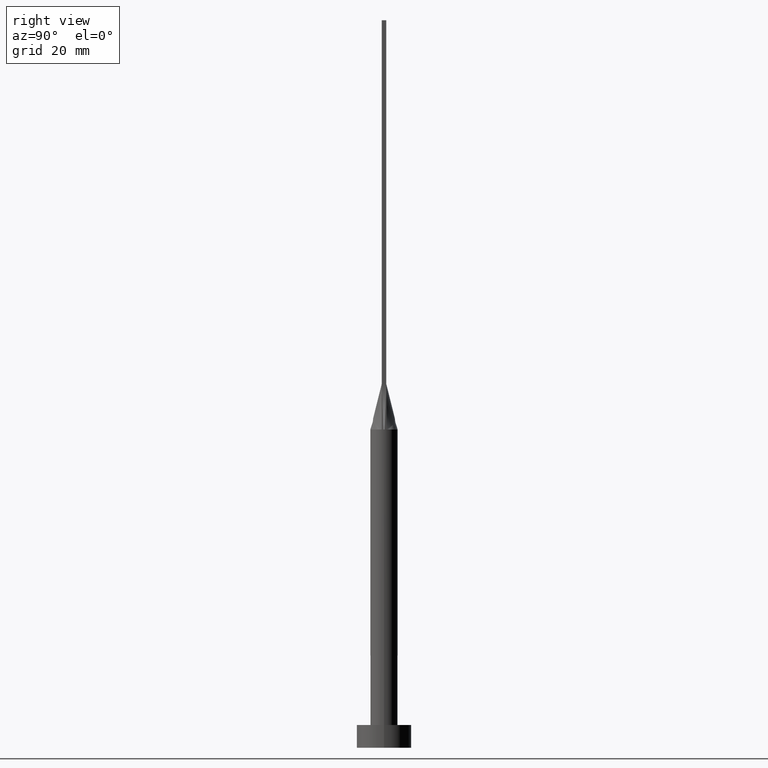
[diagram: clean part render]
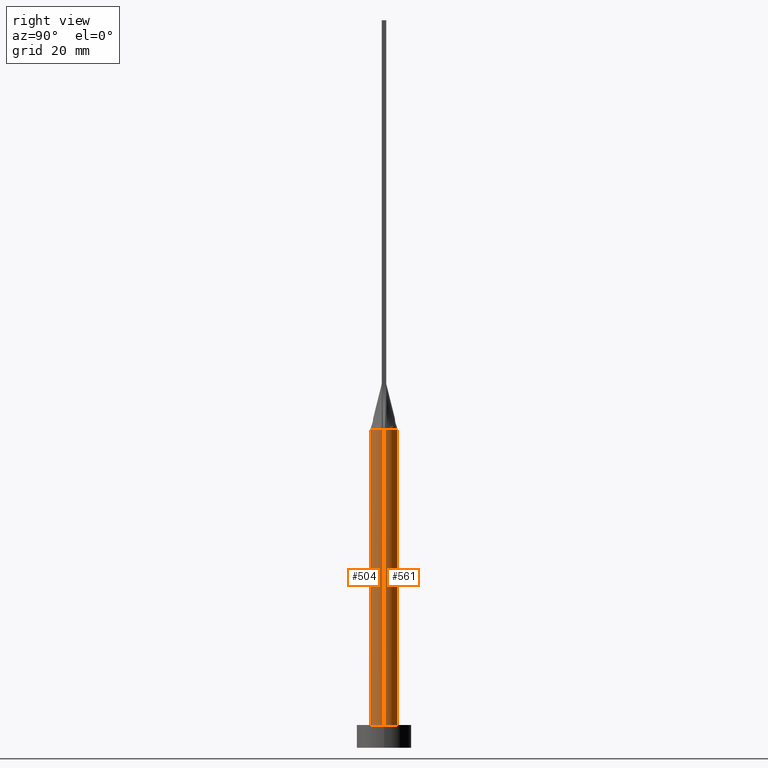
[diagram: same view with one multi-face feature highlighted, each face labeled with its STEP entity id]
A machine part, right view. The highlighted faces form ONE feature: a constant-radius fillet chain: 2 tangent blend faces with common blend radius 3 mm. The faces share edges in the B-rep.
Their STEP definitions:
[1] entity #504 (Cylinder):
#4 = VERTEX_POINT ( 'NONE', #468 ) ;
#5 = AXIS2_PLACEMENT_3D ( 'NONE', #438, #88, #351 ) ;
#6 = CIRCLE ( 'NONE', #252, 3.000000000000000444 ) ;
#9 = ORIENTED_EDGE ( 'NONE', *, *, #550, .F. ) ;
#11 = DIRECTION ( 'NONE',  ( 1.000000000000000000, 0.000000000000000000, 0.000000000000000000 ) ) ;
#19 = VERTEX_POINT ( 'NONE', #124 ) ;
#20 = CARTESIAN_POINT ( 'NONE',  ( 0.000000000000000000, 0.000000000000000000, 70.00000000000000000 ) ) ;
#21 = ORIENTED_EDGE ( 'NONE', *, *, #405, .T. ) ;
#37 = EDGE_CURVE ( 'NONE', #473, #4, #319, .T. ) ;
#45 = CARTESIAN_POINT ( 'NONE',  ( 2.951896064709005785, -0.5367080392066734262, 70.00000000000000000 ) ) ;
#64 = EDGE_LOOP ( 'NONE', ( #181, #578, #9, #300, #441, #21 ) ) ;
#88 = DIRECTION ( 'NONE',  ( 0.000000000000000000, 0.000000000000000000, 1.000000000000000000 ) ) ;
#124 = CARTESIAN_POINT ( 'NONE',  ( -3.000000000000000444, 0.000000000000000000, 5.000000000000000000 ) ) ;
#130 = CIRCLE ( 'NONE', #243, 3.000000000000000444 ) ;
#143 = CYLINDRICAL_SURFACE ( 'NONE', #426, 3.000000000000000444 ) ;
#152 = VECTOR ( 'NONE', #544, 1000.000000000000000 ) ;
#164 = CARTESIAN_POINT ( 'NONE',  ( -2.951885853416577277, -0.5367063210726346068, 70.00000000000000000 ) ) ;
#169 = EDGE_CURVE ( 'NONE', #4, #536, #494, .T. ) ;
#181 = ORIENTED_EDGE ( 'NONE', *, *, #169, .F. ) ;
#182 = DIRECTION ( 'NONE',  ( -1.000000000000000000, 0.000000000000000000, 0.000000000000000000 ) ) ;
#206 = CARTESIAN_POINT ( 'NONE',  ( 3.000000000000000444, 3.673940397442060361E-16, 70.00000000000000000 ) ) ;
#234 = CARTESIAN_POINT ( 'NONE',  ( 3.000000000000000444, 3.673940397442060361E-16, 5.000000000000000000 ) ) ;
#236 = DIRECTION ( 'NONE',  ( 1.000000000000000000, 0.000000000000000000, 0.000000000000000000 ) ) ;
#239 = VERTEX_POINT ( 'NONE', #164 ) ;
#243 = AXIS2_PLACEMENT_3D ( 'NONE', #20, #556, #564 ) ;
#252 = AXIS2_PLACEMENT_3D ( 'NONE', #416, #509, #11 ) ;
#263 = DIRECTION ( 'NONE',  ( -0.000000000000000000, -0.000000000000000000, -1.000000000000000000 ) ) ;
#270 = CARTESIAN_POINT ( 'NONE',  ( 0.000000000000000000, 0.000000000000000000, 70.00000000000000000 ) ) ;
#278 = DIRECTION ( 'NONE',  ( 0.000000000000000000, 0.000000000000000000, 1.000000000000000000 ) ) ;
#300 = ORIENTED_EDGE ( 'NONE', *, *, #365, .F. ) ;
#319 = CIRCLE ( 'NONE', #5, 3.000000000000000444 ) ;
#336 = CARTESIAN_POINT ( 'NONE',  ( -2.999804865149861666, -2.046477192139111704E-15, 70.00000000000000000 ) ) ;
#351 = DIRECTION ( 'NONE',  ( 1.000000000000000000, 1.776356839400250465E-15, 0.000000000000000000 ) ) ;
#361 = LINE ( 'NONE', #362, #152 ) ;
#362 = CARTESIAN_POINT ( 'NONE',  ( -3.000000000000000444, 0.000000000000000000, 70.00000000000000000 ) ) ;
#365 = EDGE_CURVE ( 'NONE', #574, #239, #419, .T. ) ;
#367 = DIRECTION ( 'NONE',  ( -0.000000000000000000, -0.000000000000000000, -1.000000000000000000 ) ) ;
#389 = VECTOR ( 'NONE', #263, 1000.000000000000000 ) ;
#405 = EDGE_CURVE ( 'NONE', #19, #536, #6, .T. ) ;
#411 = FACE_OUTER_BOUND ( 'NONE', #64, .T. ) ;
#416 = CARTESIAN_POINT ( 'NONE',  ( 0.000000000000000000, 0.000000000000000000, 5.000000000000000000 ) ) ;
#419 = CIRCLE ( 'NONE', #515, 3.000000000000000444 ) ;
#426 = AXIS2_PLACEMENT_3D ( 'NONE', #270, #367, #182 ) ;
#438 = CARTESIAN_POINT ( 'NONE',  ( 0.000000000000000000, 0.000000000000000000, 70.00000000000000000 ) ) ;
#441 = ORIENTED_EDGE ( 'NONE', *, *, #547, .T. ) ;
#468 = CARTESIAN_POINT ( 'NONE',  ( 2.999804865149861666, 7.183978618307599791E-16, 70.00000000000000000 ) ) ;
#473 = VERTEX_POINT ( 'NONE', #45 ) ;
#494 = LINE ( 'NONE', #206, #389 ) ;
#504 = ADVANCED_FACE ( 'NONE', ( #411 ), #143, .T. ) ;
#509 = DIRECTION ( 'NONE',  ( 0.000000000000000000, 0.000000000000000000, 1.000000000000000000 ) ) ;
#515 = AXIS2_PLACEMENT_3D ( 'NONE', #520, #278, #236 ) ;
#520 = CARTESIAN_POINT ( 'NONE',  ( 0.000000000000000000, 0.000000000000000000, 70.00000000000000000 ) ) ;
#536 = VERTEX_POINT ( 'NONE', #234 ) ;
#544 = DIRECTION ( 'NONE',  ( -0.000000000000000000, -0.000000000000000000, -1.000000000000000000 ) ) ;
#547 = EDGE_CURVE ( 'NONE', #574, #19, #361, .T. ) ;
#550 = EDGE_CURVE ( 'NONE', #239, #473, #130, .T. ) ;
#556 = DIRECTION ( 'NONE',  ( 0.000000000000000000, 0.000000000000000000, 1.000000000000000000 ) ) ;
#564 = DIRECTION ( 'NONE',  ( 1.000000000000000000, 0.000000000000000000, 0.000000000000000000 ) ) ;
#574 = VERTEX_POINT ( 'NONE', #336 ) ;
#578 = ORIENTED_EDGE ( 'NONE', *, *, #37, .F. ) ;
[2] entity #561 (Cylinder):
#4 = VERTEX_POINT ( 'NONE', #468 ) ;
#19 = VERTEX_POINT ( 'NONE', #124 ) ;
#27 = CARTESIAN_POINT ( 'NONE',  ( 2.829409566978765778, 1.041313647073049298, 70.00000000000000000 ) ) ;
#48 = ORIENTED_EDGE ( 'NONE', *, *, #276, .T. ) ;
#53 = AXIS2_PLACEMENT_3D ( 'NONE', #122, #540, #119 ) ;
#65 = CARTESIAN_POINT ( 'NONE',  ( 2.907609730299723250, 0.7786563145999496616, 70.00000000000001421 ) ) ;
#69 = DIRECTION ( 'NONE',  ( -0.000000000000000000, -0.000000000000000000, -1.000000000000000000 ) ) ;
#75 = DIRECTION ( 'NONE',  ( -1.000000000000000000, 0.000000000000000000, 0.000000000000000000 ) ) ;
#98 = ORIENTED_EDGE ( 'NONE', *, *, #169, .T. ) ;
#102 = EDGE_LOOP ( 'NONE', ( #451, #98, #48, #408, #410, #415 ) ) ;
#107 = AXIS2_PLACEMENT_3D ( 'NONE', #244, #69, #75 ) ;
#113 = CARTESIAN_POINT ( 'NONE',  ( 0.4172881767044975820, 3.000000000000000000, 70.00000000000000000 ) ) ;
#116 = CARTESIAN_POINT ( 'NONE',  ( -2.567367750129864401, 1.580669302822275357, 70.00000000000001421 ) ) ;
#119 = DIRECTION ( 'NONE',  ( 1.000000000000000000, 0.000000000000000000, 0.000000000000000000 ) ) ;
#120 = EDGE_CURVE ( 'NONE', #421, #574, #508, .T. ) ;
#122 = CARTESIAN_POINT ( 'NONE',  ( 0.000000000000000000, 0.000000000000000000, 70.00000000000000000 ) ) ;
#124 = CARTESIAN_POINT ( 'NONE',  ( -3.000000000000000444, 0.000000000000000000, 5.000000000000000000 ) ) ;
#141 = DIRECTION ( 'NONE',  ( 0.000000000000000000, 0.000000000000000000, 1.000000000000000000 ) ) ;
#150 = CARTESIAN_POINT ( 'NONE',  ( 1.566158656300002061, 2.589797565249318811, 70.00000000000000000 ) ) ;
#152 = VECTOR ( 'NONE', #544, 1000.000000000000000 ) ;
#153 = CARTESIAN_POINT ( 'NONE',  ( 2.951871110830718514, 0.5367036202482695639, 70.00000000000000000 ) ) ;
#169 = EDGE_CURVE ( 'NONE', #4, #536, #494, .T. ) ;
#174 = VERTEX_POINT ( 'NONE', #446 ) ;
#183 = DIRECTION ( 'NONE',  ( 1.000000000000000000, 0.000000000000000000, 0.000000000000000000 ) ) ;
#186 = CARTESIAN_POINT ( 'NONE',  ( -2.951881273711813858, 0.5367053345652121887, 70.00000000000000000 ) ) ;
#197 = CARTESIAN_POINT ( 'NONE',  ( -0.8331239790496237640, 2.909606296598777231, 70.00000000000001421 ) ) ;
#206 = CARTESIAN_POINT ( 'NONE',  ( 3.000000000000000444, 3.673940397442060361E-16, 70.00000000000000000 ) ) ;
#215 = B_SPLINE_CURVE_WITH_KNOTS ( 'NONE', 3,
 ( #153, #65, #27, #374, #376, #557, #150, #327, #113, #286, #197, #467, #332, #383, #116, #290, #337, #535 ),
 .UNSPECIFIED., .F., .F.,
 ( 4, 2, 2, 2, 2, 2, 2, 2, 4 ),
 ( 0.000000000000000000, 0.1250000000000000000, 0.2500000000000000000, 0.3750000000000000000, 0.5000000000000000000, 0.6250000000000000000, 0.7500000000000000000, 0.8750000000000000000, 1.000000000000000000 ),
 .UNSPECIFIED. ) ;
#217 = AXIS2_PLACEMENT_3D ( 'NONE', #272, #141, #358 ) ;
#226 = CARTESIAN_POINT ( 'NONE',  ( 0.000000000000000000, 0.000000000000000000, 70.00000000000000000 ) ) ;
#234 = CARTESIAN_POINT ( 'NONE',  ( 3.000000000000000444, 3.673940397442060361E-16, 5.000000000000000000 ) ) ;
#244 = CARTESIAN_POINT ( 'NONE',  ( 0.000000000000000000, 0.000000000000000000, 70.00000000000000000 ) ) ;
#256 = EDGE_CURVE ( 'NONE', #4, #174, #292, .T. ) ;
#263 = DIRECTION ( 'NONE',  ( -0.000000000000000000, -0.000000000000000000, -1.000000000000000000 ) ) ;
#272 = CARTESIAN_POINT ( 'NONE',  ( 0.000000000000000000, 0.000000000000000000, 5.000000000000000000 ) ) ;
#276 = EDGE_CURVE ( 'NONE', #536, #19, #341, .T. ) ;
#285 = CYLINDRICAL_SURFACE ( 'NONE', #107, 3.000000000000000444 ) ;
#286 = CARTESIAN_POINT ( 'NONE',  ( -0.4172881767044976375, 2.999999999999999556, 69.99999999999998579 ) ) ;
#290 = CARTESIAN_POINT ( 'NONE',  ( -2.829409566978765334, 1.041313647073049298, 70.00000000000001421 ) ) ;
#292 = CIRCLE ( 'NONE', #53, 3.000000000000000444 ) ;
#325 = FACE_OUTER_BOUND ( 'NONE', #102, .T. ) ;
#327 = CARTESIAN_POINT ( 'NONE',  ( 0.8331239790496237640, 2.909606296598776787, 69.99999999999998579 ) ) ;
#332 = CARTESIAN_POINT ( 'NONE',  ( -1.882426928433513336, 2.362790634184935623, 70.00000000000001421 ) ) ;
#336 = CARTESIAN_POINT ( 'NONE',  ( -2.999804865149861666, -2.046477192139111704E-15, 70.00000000000000000 ) ) ;
#337 = CARTESIAN_POINT ( 'NONE',  ( -2.907609730299723250, 0.7786563145999495505, 70.00000000000001421 ) ) ;
#339 = EDGE_CURVE ( 'NONE', #174, #421, #215, .T. ) ;
#341 = CIRCLE ( 'NONE', #217, 3.000000000000000444 ) ;
#358 = DIRECTION ( 'NONE',  ( 1.000000000000000000, 0.000000000000000000, 0.000000000000000000 ) ) ;
#361 = LINE ( 'NONE', #362, #152 ) ;
#362 = CARTESIAN_POINT ( 'NONE',  ( -3.000000000000000444, 0.000000000000000000, 70.00000000000000000 ) ) ;
#374 = CARTESIAN_POINT ( 'NONE',  ( 2.567367750129863957, 1.580669302822274913, 70.00000000000000000 ) ) ;
#376 = CARTESIAN_POINT ( 'NONE',  ( 2.382399439808187580, 1.857547746650221709, 70.00000000000000000 ) ) ;
#383 = CARTESIAN_POINT ( 'NONE',  ( -2.382399439808186692, 1.857547746650221265, 70.00000000000001421 ) ) ;
#389 = VECTOR ( 'NONE', #263, 1000.000000000000000 ) ;
#408 = ORIENTED_EDGE ( 'NONE', *, *, #547, .F. ) ;
#410 = ORIENTED_EDGE ( 'NONE', *, *, #120, .F. ) ;
#415 = ORIENTED_EDGE ( 'NONE', *, *, #339, .F. ) ;
#421 = VERTEX_POINT ( 'NONE', #186 ) ;
#446 = CARTESIAN_POINT ( 'NONE',  ( 2.951871110830718514, 0.5367036202482695639, 70.00000000000000000 ) ) ;
#451 = ORIENTED_EDGE ( 'NONE', *, *, #256, .F. ) ;
#467 = CARTESIAN_POINT ( 'NONE',  ( -1.566158656300002061, 2.589797565249319700, 69.99999999999998579 ) ) ;
#468 = CARTESIAN_POINT ( 'NONE',  ( 2.999804865149861666, 7.183978618307599791E-16, 70.00000000000000000 ) ) ;
#494 = LINE ( 'NONE', #206, #389 ) ;
#508 = CIRCLE ( 'NONE', #560, 3.000000000000000444 ) ;
#535 = CARTESIAN_POINT ( 'NONE',  ( -2.951881273711813858, 0.5367053345652121887, 70.00000000000000000 ) ) ;
#536 = VERTEX_POINT ( 'NONE', #234 ) ;
#540 = DIRECTION ( 'NONE',  ( 0.000000000000000000, 0.000000000000000000, 1.000000000000000000 ) ) ;
#544 = DIRECTION ( 'NONE',  ( -0.000000000000000000, -0.000000000000000000, -1.000000000000000000 ) ) ;
#547 = EDGE_CURVE ( 'NONE', #574, #19, #361, .T. ) ;
#548 = DIRECTION ( 'NONE',  ( 0.000000000000000000, 0.000000000000000000, 1.000000000000000000 ) ) ;
#557 = CARTESIAN_POINT ( 'NONE',  ( 1.882426928433512892, 2.362790634184934291, 69.99999999999998579 ) ) ;
#560 = AXIS2_PLACEMENT_3D ( 'NONE', #226, #548, #183 ) ;
#561 = ADVANCED_FACE ( 'NONE', ( #325 ), #285, .T. ) ;
#574 = VERTEX_POINT ( 'NONE', #336 ) ;